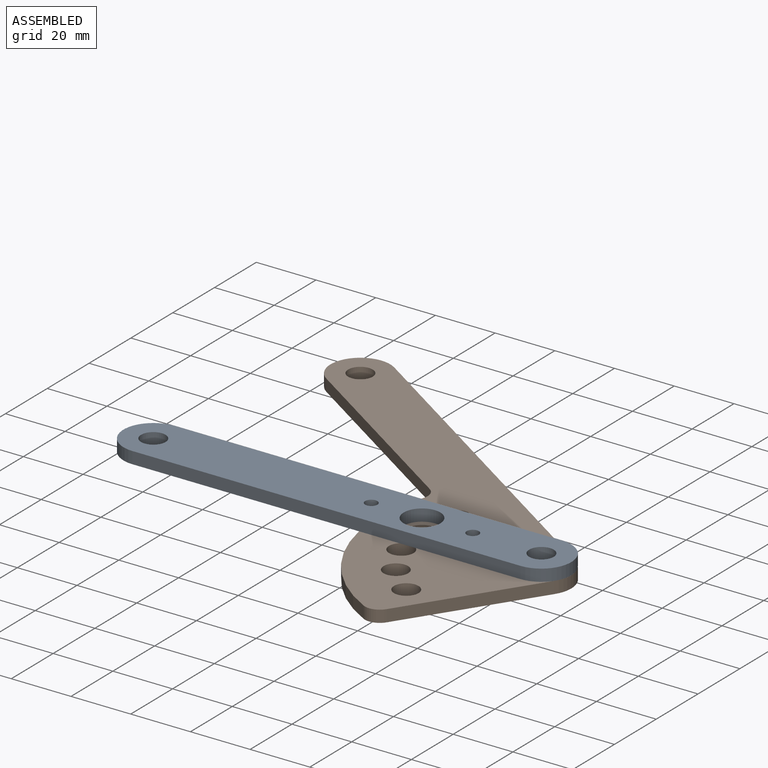
[diagram: assembled view]
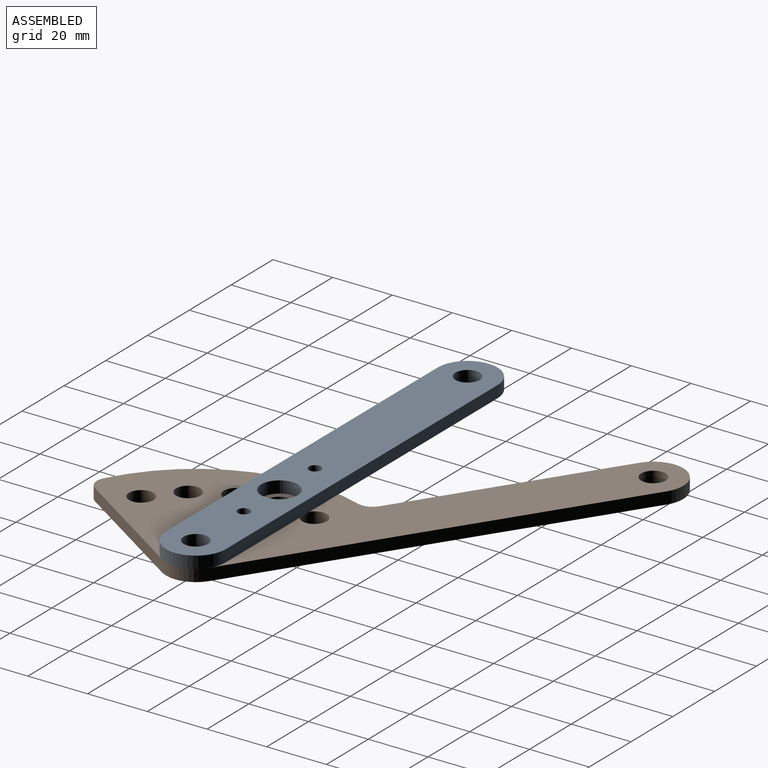
[diagram: assembled view, second angle]
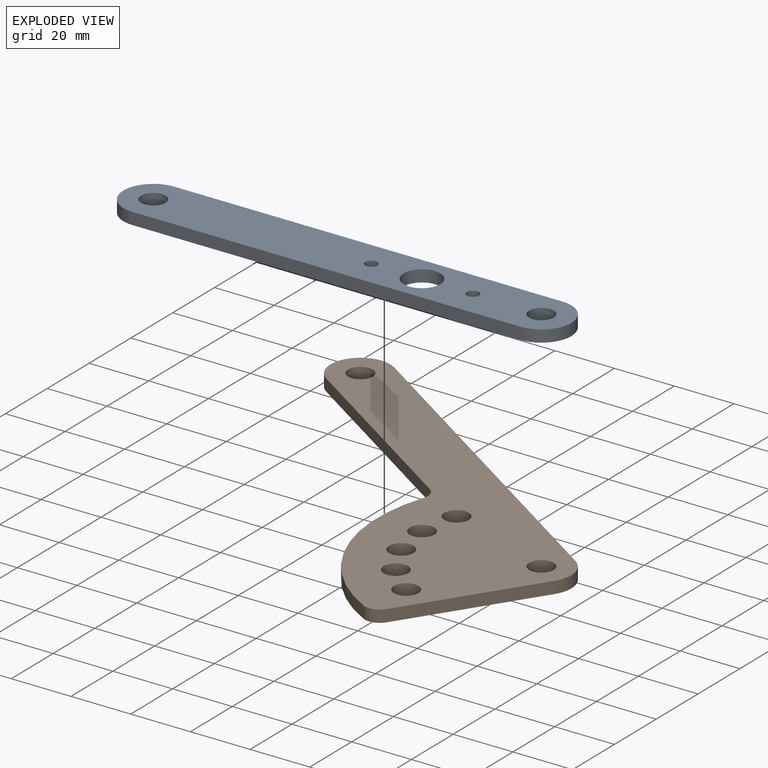
[diagram: exploded view]
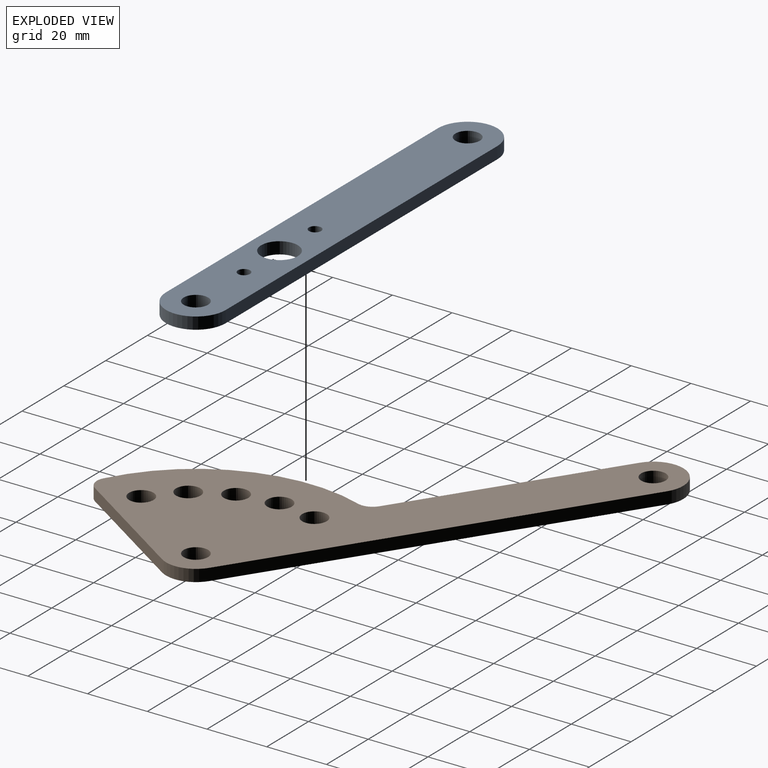
[diagram: exploded view, second angle]
ASSEMBLY  parts=2 mates=2
PART A: 11 faces, bbox 150x20x4 mm
  f0: cylinder r=10mm len=20mm, axis (0,0,-1), area 125.7mm2, adj f1,f8,f9,f10
  f1: plane 130x4mm, normal (0,-1,0), area 520mm2, adj f0,f2,f9,f10
  f2: cylinder r=10mm len=20mm, axis (0,0,-1), area 125.7mm2, adj f1,f8,f9,f10
  f3: cylinder r=4.1mm len=8.2mm, axis (0,0,-1), area 103mm2, adj f9,f10
  f4: cylinder r=2.05mm len=4.1mm, axis (0,0,-1), area 51.5mm2, adj f9,f10
  f5: cylinder r=2.05mm len=4.1mm, axis (0,0,-1), area 51.5mm2, adj f9,f10
  f6: cylinder r=6.15mm len=12.3mm, axis (0,0,-1), area 154.6mm2, adj f9,f10
  f7: cylinder r=4.1mm len=8.2mm, axis (0,0,-1), area 103mm2, adj f9,f10
  f8: plane 130x4mm, normal (0,1,0), area 520mm2, adj f0,f2,f9,f10
  f9: plane 150x20mm, normal (0,0,1), area 2663.3mm2, adj f0,f1,f2,f3,f4,f5,f6,f7
  f10: plane 150x20mm, normal (0,0,-1), area 2663.3mm2, adj f0,f1,f2,f3,f4,f5,f6,f7
PART B: 17 faces, bbox 155.1x65x4 mm
  f0: plane 135x4mm, normal (0,1,0), area 540mm2, adj f1,f14,f15,f16
  f1: cylinder r=10mm len=20mm, axis (0,0,-1), area 125.7mm2, adj f0,f2,f15,f16
  f2: plane 76.91x4mm, normal (0,-1,0), area 307.6mm2, adj f1,f3,f15,f16
  f3: cylinder r=5mm len=4.84mm, axis (0,0,-1), area 26.4mm2, adj f2,f4,f15,f16
  f4: cylinder r=55mm len=58.9mm, axis (0,0,-1), area 312.6mm2, adj f3,f5,f15,f16
  f5: cylinder r=5mm len=4.99mm, axis (0,0,-1), area 29.4mm2, adj f4,f6,f15,f16
  f6: plane 49.5x4mm, normal (1,0,0), area 198mm2, adj f5,f14,f15,f16
  f7: cylinder r=4.1mm len=8.2mm, axis (0,0,-1), area 103mm2, adj f15,f16
  f8: cylinder r=4.1mm len=8.2mm, axis (0,0,-1), area 103mm2, adj f15,f16
  f9: cylinder r=4.1mm len=8.2mm, axis (0,0,-1), area 103mm2, adj f15,f16
  f10: cylinder r=4.1mm len=8.2mm, axis (0,0,-1), area 103mm2, adj f15,f16
  f11: cylinder r=4.1mm len=8.2mm, axis (0,0,-1), area 103mm2, adj f15,f16
  f12: cylinder r=4.1mm len=8.2mm, axis (0,0,-1), area 103mm2, adj f15,f16
  f13: cylinder r=4.1mm len=8.2mm, axis (0,0,-1), area 103mm2, adj f15,f16
  f14: cylinder r=10mm len=10.22mm, axis (0,0,-1), area 63.7mm2, adj f0,f6,f15,f16
  f15: plane 155.13x65mm, normal (0,0,1), area 4944.6mm2, adj f0,f1,f2,f3,f4,f5,f6,f7
  f16: plane 155.13x65mm, normal (0,0,-1), area 4944.6mm2, adj f0,f1,f2,f3,f4,f5,f6,f7
PLACE A rot(axis=(1,0,0),180deg) t=(13.36,13.13,-11.1)mm fixed
PLACE B rot(axis=(0,0,-1),33.4deg) t=(9.68,31.48,-19.1)mm
MATE revolute A.f7 <-> B.f4  axis (0,0,1) through (78.36,13.13,-15.1)mm
MATE cylindrical A.f6 <-> B.f10  axis (0,0,1) through (38.36,13.13,-11.1)mm
